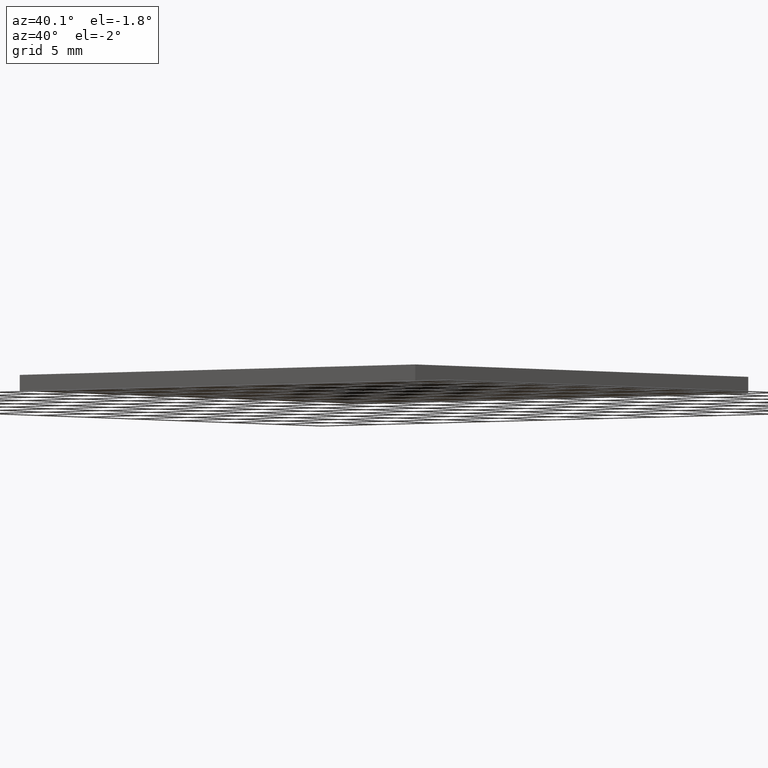
[diagram: clean part render]
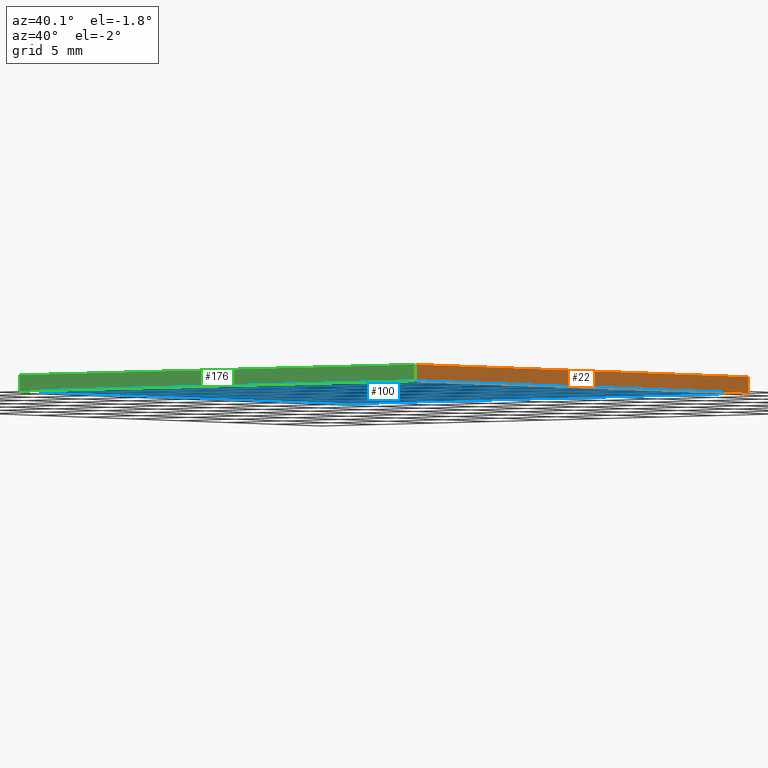
[diagram: same view with three faces highlighted in distinct colors, each labeled with its STEP entity id]
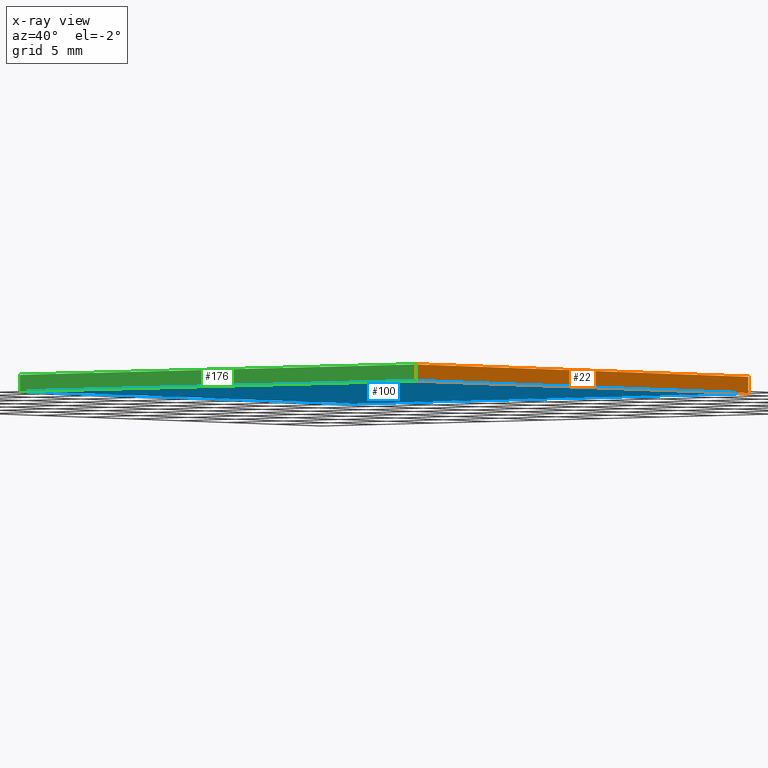
[diagram: x-ray of the same camera — body ghosted, the three highlighted faces saturated]
A machine part, auxiliary view with three faces highlighted in distinct colors.
The next image is the same camera in x-ray (body ghosted, the three faces saturated) — at least one of them is partly hidden behind the body in this view.
Their STEP definitions:

[orange] entity #22 — the highlighted planar face has unit normal (-1, 0, 0).
#4 = ORIENTED_EDGE ( 'NONE', *, *, #220, .F. ) ;
#9 = CARTESIAN_POINT ( 'NONE',  ( 17.50000000000000355, -17.49999999999999645, 0.000000000000000000 ) ) ;
#11 = CARTESIAN_POINT ( 'NONE',  ( 17.50000000000000355, -17.49999999999999645, 1.100000000000000089 ) ) ;
#22 = ADVANCED_FACE ( 'NONE', ( #46 ), #59, .F. ) ;
#24 = VECTOR ( 'NONE', #161, 1000.000000000000000 ) ;
#36 = DIRECTION ( 'NONE',  ( -0.000000000000000000, -0.000000000000000000, -1.000000000000000000 ) ) ;
#42 = VERTEX_POINT ( 'NONE', #43 ) ;
#43 = CARTESIAN_POINT ( 'NONE',  ( 17.50000000000000355, 17.50000000000000000, 0.000000000000000000 ) ) ;
#46 = FACE_OUTER_BOUND ( 'NONE', #211, .T. ) ;
#48 = CARTESIAN_POINT ( 'NONE',  ( 17.50000000000000355, 17.50000000000000000, 1.100000000000000089 ) ) ;
#50 = LINE ( 'NONE', #196, #24 ) ;
#59 = PLANE ( 'NONE',  #137 ) ;
#67 = EDGE_CURVE ( 'NONE', #172, #117, #177, .T. ) ;
#75 = VERTEX_POINT ( 'NONE', #227 ) ;
#78 = EDGE_CURVE ( 'NONE', #117, #42, #93, .T. ) ;
#93 = LINE ( 'NONE', #9, #96 ) ;
#96 = VECTOR ( 'NONE', #231, 1000.000000000000000 ) ;
#114 = CARTESIAN_POINT ( 'NONE',  ( 17.50000000000000355, -17.49999999999999645, 1.100000000000000089 ) ) ;
#117 = VERTEX_POINT ( 'NONE', #199 ) ;
#130 = VECTOR ( 'NONE', #36, 1000.000000000000000 ) ;
#133 = DIRECTION ( 'NONE',  ( 0.000000000000000000, 0.000000000000000000, 1.000000000000000000 ) ) ;
#135 = DIRECTION ( 'NONE',  ( -1.000000000000000000, 0.000000000000000000, 0.000000000000000000 ) ) ;
#137 = AXIS2_PLACEMENT_3D ( 'NONE', #114, #135, #133 ) ;
#142 = VECTOR ( 'NONE', #174, 1000.000000000000000 ) ;
#149 = ORIENTED_EDGE ( 'NONE', *, *, #78, .T. ) ;
#151 = EDGE_CURVE ( 'NONE', #172, #75, #50, .T. ) ;
#153 = ORIENTED_EDGE ( 'NONE', *, *, #67, .T. ) ;
#161 = DIRECTION ( 'NONE',  ( 0.000000000000000000, 1.000000000000000000, 0.000000000000000000 ) ) ;
#172 = VERTEX_POINT ( 'NONE', #178 ) ;
#174 = DIRECTION ( 'NONE',  ( -0.000000000000000000, -0.000000000000000000, -1.000000000000000000 ) ) ;
#177 = LINE ( 'NONE', #11, #142 ) ;
#178 = CARTESIAN_POINT ( 'NONE',  ( 17.50000000000000355, -17.49999999999999645, 1.100000000000000089 ) ) ;
#191 = ORIENTED_EDGE ( 'NONE', *, *, #151, .F. ) ;
#196 = CARTESIAN_POINT ( 'NONE',  ( 17.50000000000000355, -17.49999999999999645, 1.100000000000000089 ) ) ;
#197 = LINE ( 'NONE', #48, #130 ) ;
#199 = CARTESIAN_POINT ( 'NONE',  ( 17.50000000000000355, -17.49999999999999645, 0.000000000000000000 ) ) ;
#211 = EDGE_LOOP ( 'NONE', ( #149, #4, #191, #153 ) ) ;
#220 = EDGE_CURVE ( 'NONE', #75, #42, #197, .T. ) ;
#227 = CARTESIAN_POINT ( 'NONE',  ( 17.50000000000000355, 17.50000000000000000, 1.100000000000000089 ) ) ;
#231 = DIRECTION ( 'NONE',  ( 0.000000000000000000, 1.000000000000000000, 0.000000000000000000 ) ) ;

[blue] entity #100 — the highlighted planar face has unit normal (0, 0, -1).
#7 = AXIS2_PLACEMENT_3D ( 'NONE', #83, #182, #234 ) ;
#9 = CARTESIAN_POINT ( 'NONE',  ( 17.50000000000000355, -17.49999999999999645, 0.000000000000000000 ) ) ;
#14 = CARTESIAN_POINT ( 'NONE',  ( -17.49999999999999645, -17.49999999999999645, 0.000000000000000000 ) ) ;
#16 = CARTESIAN_POINT ( 'NONE',  ( -17.49999999999999645, 17.50000000000000000, 0.000000000000000000 ) ) ;
#25 = VERTEX_POINT ( 'NONE', #208 ) ;
#26 = EDGE_LOOP ( 'NONE', ( #222, #110, #95, #41 ) ) ;
#28 = CARTESIAN_POINT ( 'NONE',  ( -17.49999999999999645, -17.49999999999999645, 0.000000000000000000 ) ) ;
#41 = ORIENTED_EDGE ( 'NONE', *, *, #134, .F. ) ;
#42 = VERTEX_POINT ( 'NONE', #43 ) ;
#43 = CARTESIAN_POINT ( 'NONE',  ( 17.50000000000000355, 17.50000000000000000, 0.000000000000000000 ) ) ;
#61 = DIRECTION ( 'NONE',  ( -0.000000000000000000, -1.000000000000000000, -0.000000000000000000 ) ) ;
#62 = EDGE_CURVE ( 'NONE', #25, #192, #193, .T. ) ;
#69 = VECTOR ( 'NONE', #165, 1000.000000000000000 ) ;
#77 = FACE_OUTER_BOUND ( 'NONE', #26, .T. ) ;
#78 = EDGE_CURVE ( 'NONE', #117, #42, #93, .T. ) ;
#83 = CARTESIAN_POINT ( 'NONE',  ( 0.000000000000000000, 0.000000000000000000, 0.000000000000000000 ) ) ;
#93 = LINE ( 'NONE', #9, #96 ) ;
#95 = ORIENTED_EDGE ( 'NONE', *, *, #62, .F. ) ;
#96 = VECTOR ( 'NONE', #231, 1000.000000000000000 ) ;
#100 = ADVANCED_FACE ( 'NONE', ( #77 ), #155, .T. ) ;
#110 = ORIENTED_EDGE ( 'NONE', *, *, #171, .F. ) ;
#117 = VERTEX_POINT ( 'NONE', #199 ) ;
#126 = CARTESIAN_POINT ( 'NONE',  ( -17.49999999999999645, -17.49999999999999645, 0.000000000000000000 ) ) ;
#127 = VECTOR ( 'NONE', #235, 1000.000000000000000 ) ;
#134 = EDGE_CURVE ( 'NONE', #42, #25, #144, .T. ) ;
#144 = LINE ( 'NONE', #16, #127 ) ;
#145 = LINE ( 'NONE', #14, #69 ) ;
#155 = PLANE ( 'NONE',  #7 ) ;
#162 = VECTOR ( 'NONE', #61, 1000.000000000000000 ) ;
#165 = DIRECTION ( 'NONE',  ( 1.000000000000000000, 0.000000000000000000, 0.000000000000000000 ) ) ;
#171 = EDGE_CURVE ( 'NONE', #192, #117, #145, .T. ) ;
#182 = DIRECTION ( 'NONE',  ( 0.000000000000000000, 0.000000000000000000, -1.000000000000000000 ) ) ;
#192 = VERTEX_POINT ( 'NONE', #126 ) ;
#193 = LINE ( 'NONE', #28, #162 ) ;
#199 = CARTESIAN_POINT ( 'NONE',  ( 17.50000000000000355, -17.49999999999999645, 0.000000000000000000 ) ) ;
#208 = CARTESIAN_POINT ( 'NONE',  ( -17.49999999999999645, 17.50000000000000000, 0.000000000000000000 ) ) ;
#222 = ORIENTED_EDGE ( 'NONE', *, *, #78, .F. ) ;
#231 = DIRECTION ( 'NONE',  ( 0.000000000000000000, 1.000000000000000000, 0.000000000000000000 ) ) ;
#234 = DIRECTION ( 'NONE',  ( -1.000000000000000000, 0.000000000000000000, -0.000000000000000000 ) ) ;
#235 = DIRECTION ( 'NONE',  ( -1.000000000000000000, -0.000000000000000000, -0.000000000000000000 ) ) ;

[green] entity #176 — the highlighted planar face has unit normal (0, 1, 0).
#11 = CARTESIAN_POINT ( 'NONE',  ( 17.50000000000000355, -17.49999999999999645, 1.100000000000000089 ) ) ;
#12 = EDGE_LOOP ( 'NONE', ( #63, #232, #44, #113 ) ) ;
#14 = CARTESIAN_POINT ( 'NONE',  ( -17.49999999999999645, -17.49999999999999645, 0.000000000000000000 ) ) ;
#15 = CARTESIAN_POINT ( 'NONE',  ( -17.49999999999999645, -17.49999999999999645, 1.100000000000000089 ) ) ;
#29 = CARTESIAN_POINT ( 'NONE',  ( -17.49999999999999645, -17.49999999999999645, 1.100000000000000089 ) ) ;
#44 = ORIENTED_EDGE ( 'NONE', *, *, #115, .F. ) ;
#63 = ORIENTED_EDGE ( 'NONE', *, *, #171, .T. ) ;
#64 = CARTESIAN_POINT ( 'NONE',  ( -17.49999999999999645, -17.49999999999999645, 1.100000000000000089 ) ) ;
#67 = EDGE_CURVE ( 'NONE', #172, #117, #177, .T. ) ;
#69 = VECTOR ( 'NONE', #165, 1000.000000000000000 ) ;
#74 = EDGE_CURVE ( 'NONE', #91, #192, #154, .T. ) ;
#82 = CARTESIAN_POINT ( 'NONE',  ( -17.49999999999999645, -17.49999999999999645, 1.100000000000000089 ) ) ;
#91 = VERTEX_POINT ( 'NONE', #64 ) ;
#97 = PLANE ( 'NONE',  #181 ) ;
#111 = VECTOR ( 'NONE', #156, 1000.000000000000000 ) ;
#113 = ORIENTED_EDGE ( 'NONE', *, *, #74, .T. ) ;
#115 = EDGE_CURVE ( 'NONE', #91, #172, #215, .T. ) ;
#117 = VERTEX_POINT ( 'NONE', #199 ) ;
#120 = DIRECTION ( 'NONE',  ( 1.000000000000000000, 0.000000000000000000, 0.000000000000000000 ) ) ;
#121 = VECTOR ( 'NONE', #120, 1000.000000000000000 ) ;
#125 = DIRECTION ( 'NONE',  ( 0.000000000000000000, 1.000000000000000000, 0.000000000000000000 ) ) ;
#126 = CARTESIAN_POINT ( 'NONE',  ( -17.49999999999999645, -17.49999999999999645, 0.000000000000000000 ) ) ;
#142 = VECTOR ( 'NONE', #174, 1000.000000000000000 ) ;
#145 = LINE ( 'NONE', #14, #69 ) ;
#154 = LINE ( 'NONE', #29, #111 ) ;
#156 = DIRECTION ( 'NONE',  ( -0.000000000000000000, -0.000000000000000000, -1.000000000000000000 ) ) ;
#165 = DIRECTION ( 'NONE',  ( 1.000000000000000000, 0.000000000000000000, 0.000000000000000000 ) ) ;
#171 = EDGE_CURVE ( 'NONE', #192, #117, #145, .T. ) ;
#172 = VERTEX_POINT ( 'NONE', #178 ) ;
#174 = DIRECTION ( 'NONE',  ( -0.000000000000000000, -0.000000000000000000, -1.000000000000000000 ) ) ;
#176 = ADVANCED_FACE ( 'NONE', ( #216 ), #97, .F. ) ;
#177 = LINE ( 'NONE', #11, #142 ) ;
#178 = CARTESIAN_POINT ( 'NONE',  ( 17.50000000000000355, -17.49999999999999645, 1.100000000000000089 ) ) ;
#181 = AXIS2_PLACEMENT_3D ( 'NONE', #15, #125, #183 ) ;
#183 = DIRECTION ( 'NONE',  ( 0.000000000000000000, -0.000000000000000000, 1.000000000000000000 ) ) ;
#192 = VERTEX_POINT ( 'NONE', #126 ) ;
#199 = CARTESIAN_POINT ( 'NONE',  ( 17.50000000000000355, -17.49999999999999645, 0.000000000000000000 ) ) ;
#215 = LINE ( 'NONE', #82, #121 ) ;
#216 = FACE_OUTER_BOUND ( 'NONE', #12, .T. ) ;
#232 = ORIENTED_EDGE ( 'NONE', *, *, #67, .F. ) ;